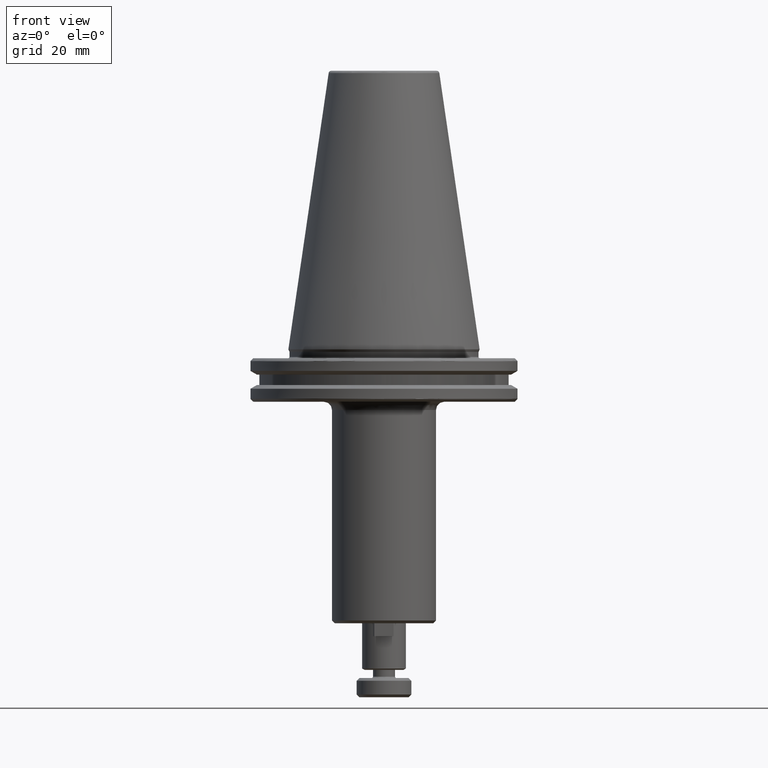
[diagram: clean part render]
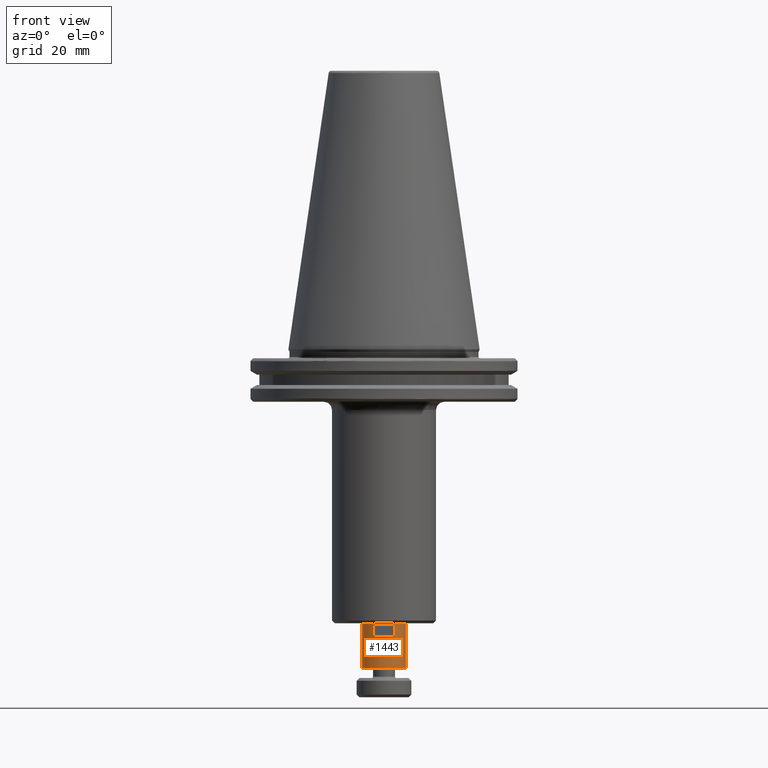
[diagram: same view with one face highlighted and labeled with its STEP entity id]
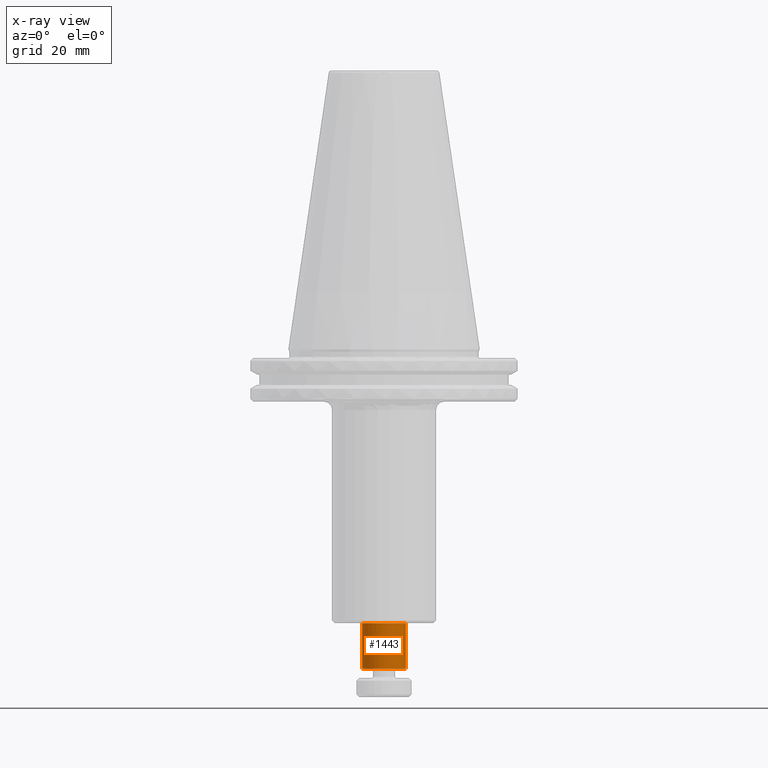
[diagram: x-ray of the same camera — body ghosted, the highlighted face saturated]
A machine part, front view. The second image highlights one B-rep face of the part: STEP entity #1443.
The next image is the same camera in x-ray: the body ghosted, the highlighted face saturated — about 0% of this face is hidden behind the body in this view.
In plain terms, the highlighted cylindrical surface (edge-blend (fillet) strip) has radius 8 mm, axis along (0, 0, 1).
Its self-contained STEP definition (entity closure, byte-faithful):
#62 = CIRCLE ( 'NONE', #3870, 8.000000000000000000 ) ;
#81 = DIRECTION ( 'NONE',  ( 1.000000000000000000, 0.0000000000000000000, 0.0000000000000000000 ) ) ;
#86 = DIRECTION ( 'NONE',  ( 0.0000000000000000000, 0.0000000000000000000, 1.000000000000000000 ) ) ;
#116 = CARTESIAN_POINT ( 'NONE',  ( 0.0000000000000000000, 0.0000000000000000000, 0.0000000000000000000 ) ) ;
#120 = CARTESIAN_POINT ( 'NONE',  ( 8.000000000000000000, 0.0000000000000000000, -116.5092522711888300 ) ) ;
#265 = CARTESIAN_POINT ( 'NONE',  ( 8.000000000000000000, 0.0000000000000000000, -100.0000000000000000 ) ) ;
#324 = CARTESIAN_POINT ( 'NONE',  ( -8.000000000000000000, 9.797174393178825700E-016, 0.0000000000000000000 ) ) ;
#327 = DIRECTION ( 'NONE',  ( 0.0000000000000000000, 0.0000000000000000000, 1.000000000000000000 ) ) ;
#619 = ORIENTED_EDGE ( 'NONE', *, *, #1293, .F. ) ;
#790 = EDGE_CURVE ( 'NONE', #2037, #955, #1982, .T. ) ;
#868 = DIRECTION ( 'NONE',  ( 0.0000000000000000000, 0.0000000000000000000, 1.000000000000000000 ) ) ;
#955 = VERTEX_POINT ( 'NONE', #1319 ) ;
#966 = CYLINDRICAL_SURFACE ( 'NONE', #3970, 8.000000000000000000 ) ;
#1293 = EDGE_CURVE ( 'NONE', #2037, #2236, #3370, .T. ) ;
#1319 = CARTESIAN_POINT ( 'NONE',  ( 0.0000000000000000000, -8.000000000000000000, -116.5092522711888300 ) ) ;
#1391 = DIRECTION ( 'NONE',  ( 1.000000000000000000, 0.0000000000000000000, 0.0000000000000000000 ) ) ;
#1443 = ADVANCED_FACE ( 'NONE', ( #3685 ), #966, .T. ) ;
#1448 = ORIENTED_EDGE ( 'NONE', *, *, #790, .T. ) ;
#1459 = CARTESIAN_POINT ( 'NONE',  ( 8.000000000000000000, 0.0000000000000000000, 0.0000000000000000000 ) ) ;
#1567 = VERTEX_POINT ( 'NONE', #120 ) ;
#1595 = VECTOR ( 'NONE', #3041, 1000.000000000000000 ) ;
#1803 = EDGE_CURVE ( 'NONE', #955, #1567, #3081, .T. ) ;
#1809 = CARTESIAN_POINT ( 'NONE',  ( 0.0000000000000000000, 0.0000000000000000000, -100.0000000000000000 ) ) ;
#1885 = CARTESIAN_POINT ( 'NONE',  ( 0.0000000000000000000, 0.0000000000000000000, -116.5092522711888300 ) ) ;
#1889 = VERTEX_POINT ( 'NONE', #265 ) ;
#1982 = CIRCLE ( 'NONE', #3724, 8.000000000000000000 ) ;
#2037 = VERTEX_POINT ( 'NONE', #2129 ) ;
#2129 = CARTESIAN_POINT ( 'NONE',  ( -8.000000000000000000, 9.797174393178825700E-016, -116.5092522711888300 ) ) ;
#2150 = DIRECTION ( 'NONE',  ( 1.000000000000000000, 0.0000000000000000000, 0.0000000000000000000 ) ) ;
#2236 = VERTEX_POINT ( 'NONE', #2591 ) ;
#2324 = EDGE_CURVE ( 'NONE', #1567, #1889, #3334, .T. ) ;
#2369 = CARTESIAN_POINT ( 'NONE',  ( 0.0000000000000000000, 0.0000000000000000000, -116.5092522711888300 ) ) ;
#2410 = VECTOR ( 'NONE', #327, 1000.000000000000000 ) ;
#2432 = ORIENTED_EDGE ( 'NONE', *, *, #1803, .T. ) ;
#2510 = DIRECTION ( 'NONE',  ( 1.000000000000000000, 0.0000000000000000000, 0.0000000000000000000 ) ) ;
#2529 = ORIENTED_EDGE ( 'NONE', *, *, #2324, .T. ) ;
#2586 = DIRECTION ( 'NONE',  ( 0.0000000000000000000, 0.0000000000000000000, 1.000000000000000000 ) ) ;
#2591 = CARTESIAN_POINT ( 'NONE',  ( -8.000000000000000000, 9.797174393178825700E-016, -100.0000000000000000 ) ) ;
#2729 = AXIS2_PLACEMENT_3D ( 'NONE', #1885, #868, #1391 ) ;
#2898 = EDGE_LOOP ( 'NONE', ( #619, #1448, #2432, #2529, #3236 ) ) ;
#2928 = EDGE_CURVE ( 'NONE', #2236, #1889, #62, .T. ) ;
#3041 = DIRECTION ( 'NONE',  ( 0.0000000000000000000, 0.0000000000000000000, 1.000000000000000000 ) ) ;
#3081 = CIRCLE ( 'NONE', #2729, 8.000000000000000000 ) ;
#3236 = ORIENTED_EDGE ( 'NONE', *, *, #2928, .F. ) ;
#3334 = LINE ( 'NONE', #1459, #1595 ) ;
#3370 = LINE ( 'NONE', #324, #2410 ) ;
#3685 = FACE_OUTER_BOUND ( 'NONE', #2898, .T. ) ;
#3724 = AXIS2_PLACEMENT_3D ( 'NONE', #2369, #2586, #2510 ) ;
#3870 = AXIS2_PLACEMENT_3D ( 'NONE', #1809, #4025, #2150 ) ;
#3970 = AXIS2_PLACEMENT_3D ( 'NONE', #116, #86, #81 ) ;
#4025 = DIRECTION ( 'NONE',  ( 0.0000000000000000000, 0.0000000000000000000, 1.000000000000000000 ) ) ;